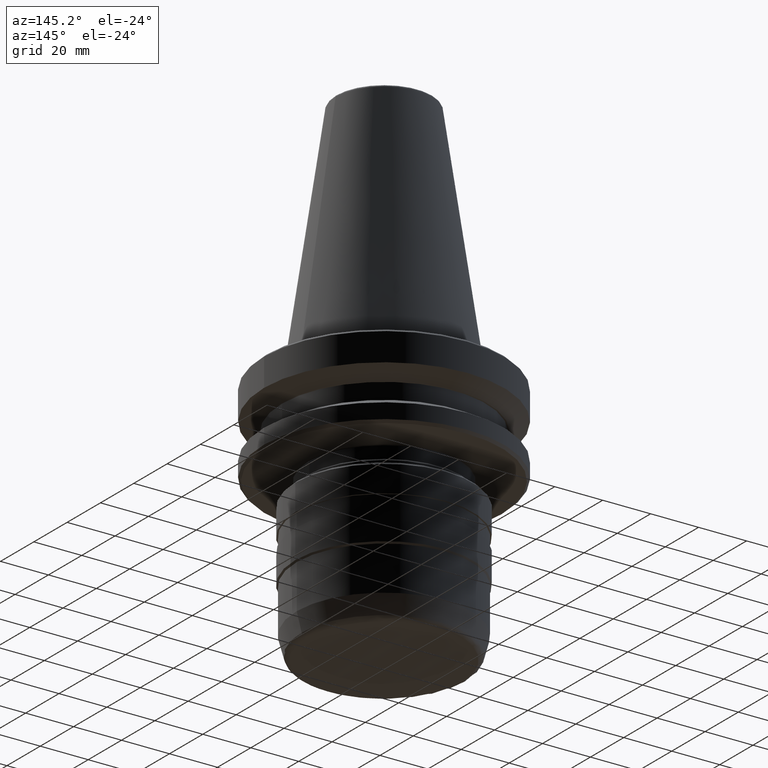
[diagram: clean part render]
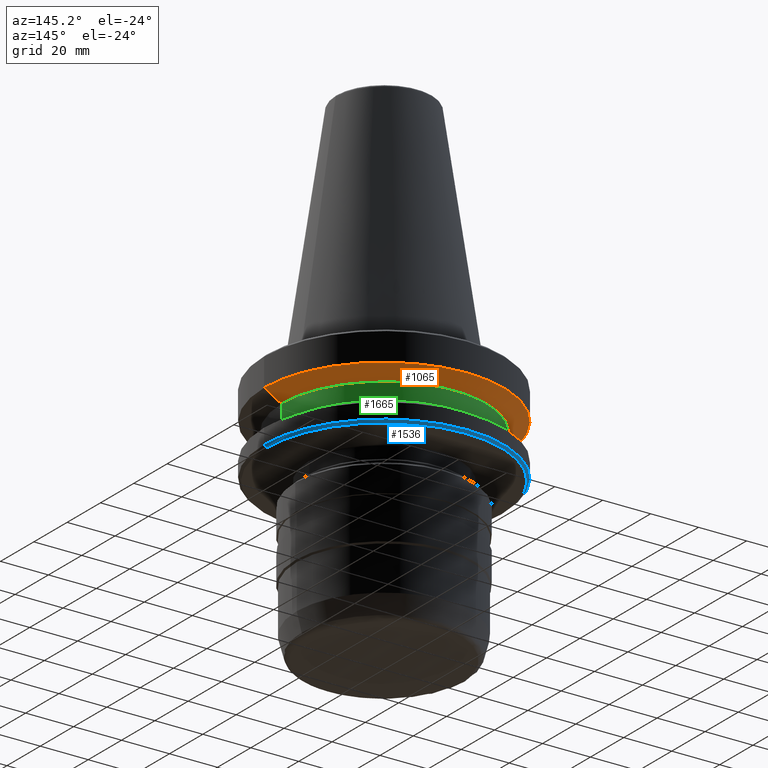
[diagram: same view with three faces highlighted in distinct colors, each labeled with its STEP entity id]
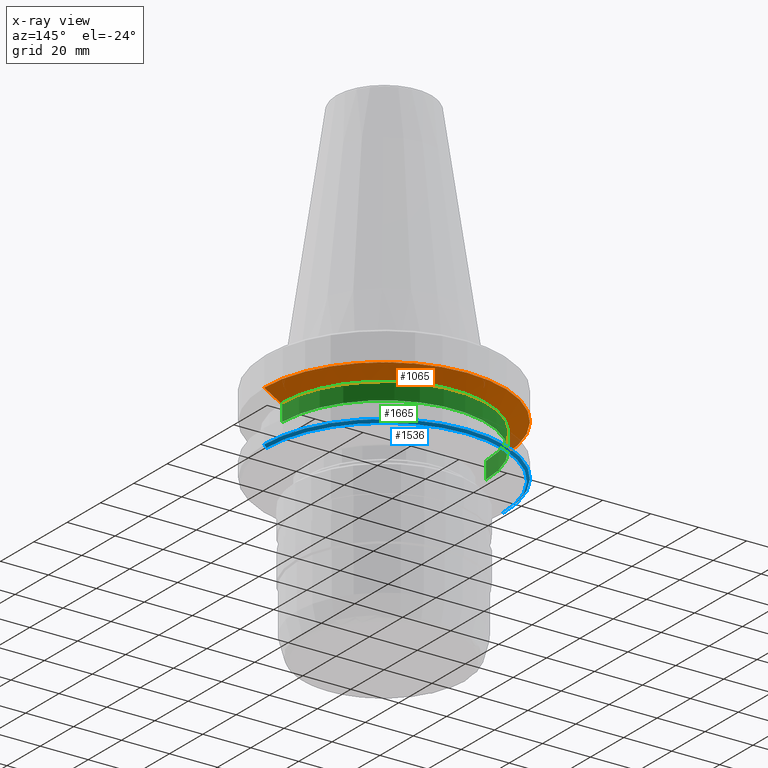
[diagram: x-ray of the same camera — body ghosted, the three highlighted faces saturated]
A machine part, auxiliary view with three faces highlighted in distinct colors.
The next image is the same camera in x-ray (body ghosted, the three faces saturated) — at least one of them is partly hidden behind the body in this view.
Their STEP definitions:

[orange] entity #1065 — the highlighted conical surface has half-angle 60 deg.
#47 = VERTEX_POINT ( 'NONE', #209 ) ;
#63 = ORIENTED_EDGE ( 'NONE', *, *, #908, .F. ) ;
#86 = ORIENTED_EDGE ( 'NONE', *, *, #273, .T. ) ;
#112 = AXIS2_PLACEMENT_3D ( 'NONE', #404, #663, #926 ) ;
#142 = LINE ( 'NONE', #1163, #357 ) ;
#168 = DIRECTION ( 'NONE',  ( -0.8660254037844452600, 1.060575238724914900E-016, 0.4999999999999885100 ) ) ;
#192 = DIRECTION ( 'NONE',  ( -0.0000000000000000000, -0.0000000000000000000, 1.000000000000000000 ) ) ;
#209 = CARTESIAN_POINT ( 'NONE',  ( -50.00000000000037700, 6.123233995736812600E-015, -15.70022000322789100 ) ) ;
#273 = EDGE_CURVE ( 'NONE', #1576, #47, #142, .T. ) ;
#287 = CARTESIAN_POINT ( 'NONE',  ( 43.07217782649197300, 0.0000000000000000000, -19.70000000000070300 ) ) ;
#298 = AXIS2_PLACEMENT_3D ( 'NONE', #1173, #390, #1298 ) ;
#320 = LINE ( 'NONE', #670, #655 ) ;
#347 = CIRCLE ( 'NONE', #824, 50.00000000000037700 ) ;
#357 = VECTOR ( 'NONE', #168, 1000.000000000000100 ) ;
#388 = CARTESIAN_POINT ( 'NONE',  ( -43.07217782649197300, 5.699027233244356500E-015, -19.70000000000070300 ) ) ;
#390 = DIRECTION ( 'NONE',  ( -0.0000000000000000000, -0.0000000000000000000, 1.000000000000000000 ) ) ;
#404 = CARTESIAN_POINT ( 'NONE',  ( 0.0000000000000000000, 0.0000000000000000000, -19.70000000000070300 ) ) ;
#428 = ORIENTED_EDGE ( 'NONE', *, *, #525, .F. ) ;
#481 = CIRCLE ( 'NONE', #298, 43.07217782649197300 ) ;
#525 = EDGE_CURVE ( 'NONE', #1237, #47, #347, .T. ) ;
#615 = EDGE_LOOP ( 'NONE', ( #1470, #86, #428, #63 ) ) ;
#655 = VECTOR ( 'NONE', #1085, 1000.000000000000100 ) ;
#663 = DIRECTION ( 'NONE',  ( -0.0000000000000000000, -0.0000000000000000000, 1.000000000000000000 ) ) ;
#670 = CARTESIAN_POINT ( 'NONE',  ( 43.07217782649197300, 0.0000000000000000000, -19.70000000000070300 ) ) ;
#676 = CONICAL_SURFACE ( 'NONE', #112, 43.07217782649197300, 1.047197551196611000 ) ;
#680 = DIRECTION ( 'NONE',  ( 1.000000000000000000, 0.0000000000000000000, 0.0000000000000000000 ) ) ;
#824 = AXIS2_PLACEMENT_3D ( 'NONE', #1533, #192, #680 ) ;
#908 = EDGE_CURVE ( 'NONE', #1090, #1237, #320, .T. ) ;
#926 = DIRECTION ( 'NONE',  ( 1.000000000000000000, 0.0000000000000000000, 0.0000000000000000000 ) ) ;
#963 = CARTESIAN_POINT ( 'NONE',  ( 50.00000000000037700, 0.0000000000000000000, -15.70022000322789100 ) ) ;
#999 = EDGE_CURVE ( 'NONE', #1090, #1576, #481, .T. ) ;
#1065 = ADVANCED_FACE ( 'NONE', ( #1447 ), #676, .T. ) ;
#1085 = DIRECTION ( 'NONE',  ( 0.8660254037844452600, 0.0000000000000000000, 0.4999999999999885100 ) ) ;
#1090 = VERTEX_POINT ( 'NONE', #287 ) ;
#1163 = CARTESIAN_POINT ( 'NONE',  ( -43.07217782649197300, 5.274820470751900300E-015, -19.70000000000070300 ) ) ;
#1173 = CARTESIAN_POINT ( 'NONE',  ( 0.0000000000000000000, 0.0000000000000000000, -19.70000000000070300 ) ) ;
#1237 = VERTEX_POINT ( 'NONE', #963 ) ;
#1298 = DIRECTION ( 'NONE',  ( 1.000000000000000000, 0.0000000000000000000, 0.0000000000000000000 ) ) ;
#1447 = FACE_OUTER_BOUND ( 'NONE', #615, .T. ) ;
#1470 = ORIENTED_EDGE ( 'NONE', *, *, #999, .T. ) ;
#1533 = CARTESIAN_POINT ( 'NONE',  ( 0.0000000000000000000, 0.0000000000000000000, -15.70022000322789100 ) ) ;
#1576 = VERTEX_POINT ( 'NONE', #388 ) ;

[blue] entity #1536 — the highlighted conical surface has half-angle 45 deg.
#9 = CARTESIAN_POINT ( 'NONE',  ( -49.00000000000004300, 6.062001655779424500E-015, -38.00000000000201800 ) ) ;
#58 = AXIS2_PLACEMENT_3D ( 'NONE', #543, #215, #1471 ) ;
#62 = LINE ( 'NONE', #656, #806 ) ;
#87 = EDGE_CURVE ( 'NONE', #254, #1552, #652, .T. ) ;
#141 = VERTEX_POINT ( 'NONE', #501 ) ;
#193 = FACE_OUTER_BOUND ( 'NONE', #391, .T. ) ;
#203 = ORIENTED_EDGE ( 'NONE', *, *, #87, .F. ) ;
#215 = DIRECTION ( 'NONE',  ( -0.0000000000000000000, -0.0000000000000000000, 1.000000000000000000 ) ) ;
#221 = CARTESIAN_POINT ( 'NONE',  ( 50.00000000000037700, 0.0000000000000000000, -37.00000000000168400 ) ) ;
#254 = VERTEX_POINT ( 'NONE', #221 ) ;
#279 = DIRECTION ( 'NONE',  ( 0.7071067811865474600, 0.0000000000000000000, 0.7071067811865475700 ) ) ;
#380 = CONICAL_SURFACE ( 'NONE', #1043, 49.00000000000004300, 0.7853981633974482800 ) ;
#391 = EDGE_LOOP ( 'NONE', ( #653, #409, #203, #1283 ) ) ;
#403 = CARTESIAN_POINT ( 'NONE',  ( 0.0000000000000000000, 0.0000000000000000000, -38.00000000000201800 ) ) ;
#409 = ORIENTED_EDGE ( 'NONE', *, *, #1673, .T. ) ;
#495 = DIRECTION ( 'NONE',  ( -0.0000000000000000000, -0.0000000000000000000, 1.000000000000000000 ) ) ;
#501 = CARTESIAN_POINT ( 'NONE',  ( 49.00000000000004300, 0.0000000000000000000, -38.00000000000201800 ) ) ;
#543 = CARTESIAN_POINT ( 'NONE',  ( 0.0000000000000000000, 0.0000000000000000000, -37.00000000000168400 ) ) ;
#612 = EDGE_CURVE ( 'NONE', #141, #1053, #796, .T. ) ;
#652 = CIRCLE ( 'NONE', #58, 50.00000000000037700 ) ;
#653 = ORIENTED_EDGE ( 'NONE', *, *, #612, .T. ) ;
#656 = CARTESIAN_POINT ( 'NONE',  ( 49.00000000000004300, 0.0000000000000000000, -38.00000000000201800 ) ) ;
#720 = DIRECTION ( 'NONE',  ( -0.0000000000000000000, -0.0000000000000000000, 1.000000000000000000 ) ) ;
#796 = CIRCLE ( 'NONE', #940, 49.00000000000004300 ) ;
#806 = VECTOR ( 'NONE', #279, 1000.000000000000000 ) ;
#930 = DIRECTION ( 'NONE',  ( -0.7071067811865474600, 8.659560562354931600E-017, 0.7071067811865475700 ) ) ;
#940 = AXIS2_PLACEMENT_3D ( 'NONE', #403, #720, #1373 ) ;
#1022 = DIRECTION ( 'NONE',  ( 1.000000000000000000, 0.0000000000000000000, 0.0000000000000000000 ) ) ;
#1043 = AXIS2_PLACEMENT_3D ( 'NONE', #1408, #495, #1022 ) ;
#1053 = VERTEX_POINT ( 'NONE', #9 ) ;
#1055 = EDGE_CURVE ( 'NONE', #141, #254, #62, .T. ) ;
#1155 = CARTESIAN_POINT ( 'NONE',  ( -50.00000000000037700, 6.123233995736811800E-015, -37.00000000000168400 ) ) ;
#1283 = ORIENTED_EDGE ( 'NONE', *, *, #1055, .F. ) ;
#1292 = LINE ( 'NONE', #1310, #1591 ) ;
#1310 = CARTESIAN_POINT ( 'NONE',  ( -49.00000000000004300, 6.000769315822035700E-015, -38.00000000000201800 ) ) ;
#1373 = DIRECTION ( 'NONE',  ( 1.000000000000000000, 0.0000000000000000000, 0.0000000000000000000 ) ) ;
#1408 = CARTESIAN_POINT ( 'NONE',  ( 0.0000000000000000000, 0.0000000000000000000, -38.00000000000201800 ) ) ;
#1471 = DIRECTION ( 'NONE',  ( 1.000000000000000000, 0.0000000000000000000, 0.0000000000000000000 ) ) ;
#1536 = ADVANCED_FACE ( 'NONE', ( #193 ), #380, .T. ) ;
#1552 = VERTEX_POINT ( 'NONE', #1155 ) ;
#1591 = VECTOR ( 'NONE', #930, 1000.000000000000000 ) ;
#1673 = EDGE_CURVE ( 'NONE', #1053, #1552, #1292, .T. ) ;

[green] entity #1665 — the highlighted cylindrical surface (partial cylindrical patch) has radius 42.5 mm, axis along (-0, -0, 1).
#2 = AXIS2_PLACEMENT_3D ( 'NONE', #528, #401, #1429 ) ;
#42 = EDGE_CURVE ( 'NONE', #236, #1197, #694, .T. ) ;
#236 = VERTEX_POINT ( 'NONE', #1224 ) ;
#306 = CARTESIAN_POINT ( 'NONE',  ( 0.0000000000000000000, 0.0000000000000000000, -19.70000000000070300 ) ) ;
#348 = CIRCLE ( 'NONE', #524, 42.49999999999987200 ) ;
#401 = DIRECTION ( 'NONE',  ( -0.0000000000000000000, -0.0000000000000000000, 1.000000000000000000 ) ) ;
#471 = DIRECTION ( 'NONE',  ( -0.0000000000000000000, -0.0000000000000000000, 1.000000000000000000 ) ) ;
#503 = CARTESIAN_POINT ( 'NONE',  ( 42.49999999999987200, 0.0000000000000000000, 117.2709046859995500 ) ) ;
#524 = AXIS2_PLACEMENT_3D ( 'NONE', #838, #1185, #1619 ) ;
#528 = CARTESIAN_POINT ( 'NONE',  ( 0.0000000000000000000, 0.0000000000000000000, 117.2709046859995500 ) ) ;
#534 = VECTOR ( 'NONE', #1540, 1000.000000000000000 ) ;
#556 = VERTEX_POINT ( 'NONE', #879 ) ;
#585 = CARTESIAN_POINT ( 'NONE',  ( -42.49999999999987200, 5.204748896376235100E-015, 117.2709046859995500 ) ) ;
#625 = EDGE_CURVE ( 'NONE', #1004, #556, #348, .T. ) ;
#641 = FACE_OUTER_BOUND ( 'NONE', #1100, .T. ) ;
#694 = CIRCLE ( 'NONE', #1475, 42.49999999999987200 ) ;
#838 = CARTESIAN_POINT ( 'NONE',  ( 0.0000000000000000000, 0.0000000000000000000, -26.70000000000082000 ) ) ;
#879 = CARTESIAN_POINT ( 'NONE',  ( -42.49999999999987200, 5.204748896376235100E-015, -26.70000000000082000 ) ) ;
#921 = ORIENTED_EDGE ( 'NONE', *, *, #948, .F. ) ;
#929 = ORIENTED_EDGE ( 'NONE', *, *, #1331, .T. ) ;
#948 = EDGE_CURVE ( 'NONE', #1004, #236, #1602, .T. ) ;
#959 = CARTESIAN_POINT ( 'NONE',  ( -42.49999999999987200, 5.204748896376235100E-015, -19.70000000000070300 ) ) ;
#972 = DIRECTION ( 'NONE',  ( 1.000000000000000000, 0.0000000000000000000, 0.0000000000000000000 ) ) ;
#1004 = VERTEX_POINT ( 'NONE', #1040 ) ;
#1040 = CARTESIAN_POINT ( 'NONE',  ( 42.49999999999987200, 0.0000000000000000000, -26.70000000000082000 ) ) ;
#1100 = EDGE_LOOP ( 'NONE', ( #1243, #929, #1502, #921 ) ) ;
#1185 = DIRECTION ( 'NONE',  ( -0.0000000000000000000, -0.0000000000000000000, 1.000000000000000000 ) ) ;
#1197 = VERTEX_POINT ( 'NONE', #959 ) ;
#1224 = CARTESIAN_POINT ( 'NONE',  ( 42.49999999999987200, 0.0000000000000000000, -19.70000000000070300 ) ) ;
#1243 = ORIENTED_EDGE ( 'NONE', *, *, #625, .T. ) ;
#1331 = EDGE_CURVE ( 'NONE', #556, #1197, #1396, .T. ) ;
#1396 = LINE ( 'NONE', #585, #1435 ) ;
#1429 = DIRECTION ( 'NONE',  ( 1.000000000000000000, 0.0000000000000000000, 0.0000000000000000000 ) ) ;
#1435 = VECTOR ( 'NONE', #1489, 1000.000000000000000 ) ;
#1475 = AXIS2_PLACEMENT_3D ( 'NONE', #306, #471, #972 ) ;
#1489 = DIRECTION ( 'NONE',  ( -0.0000000000000000000, -0.0000000000000000000, 1.000000000000000000 ) ) ;
#1502 = ORIENTED_EDGE ( 'NONE', *, *, #42, .F. ) ;
#1540 = DIRECTION ( 'NONE',  ( -0.0000000000000000000, -0.0000000000000000000, 1.000000000000000000 ) ) ;
#1602 = LINE ( 'NONE', #503, #534 ) ;
#1619 = DIRECTION ( 'NONE',  ( 1.000000000000000000, 0.0000000000000000000, 0.0000000000000000000 ) ) ;
#1625 = CYLINDRICAL_SURFACE ( 'NONE', #2, 42.49999999999987200 ) ;
#1665 = ADVANCED_FACE ( 'NONE', ( #641 ), #1625, .T. ) ;